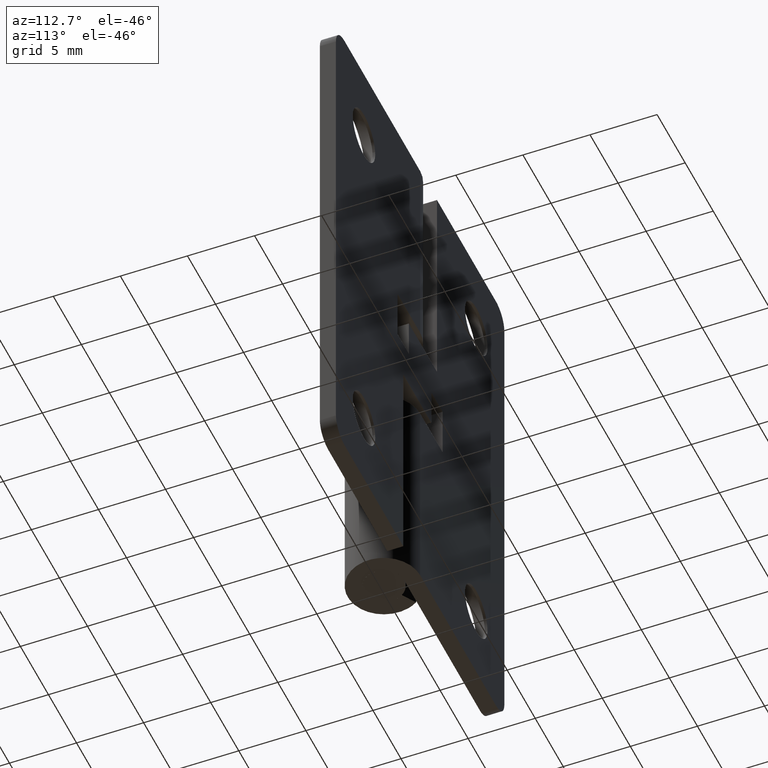
[diagram: clean part render]
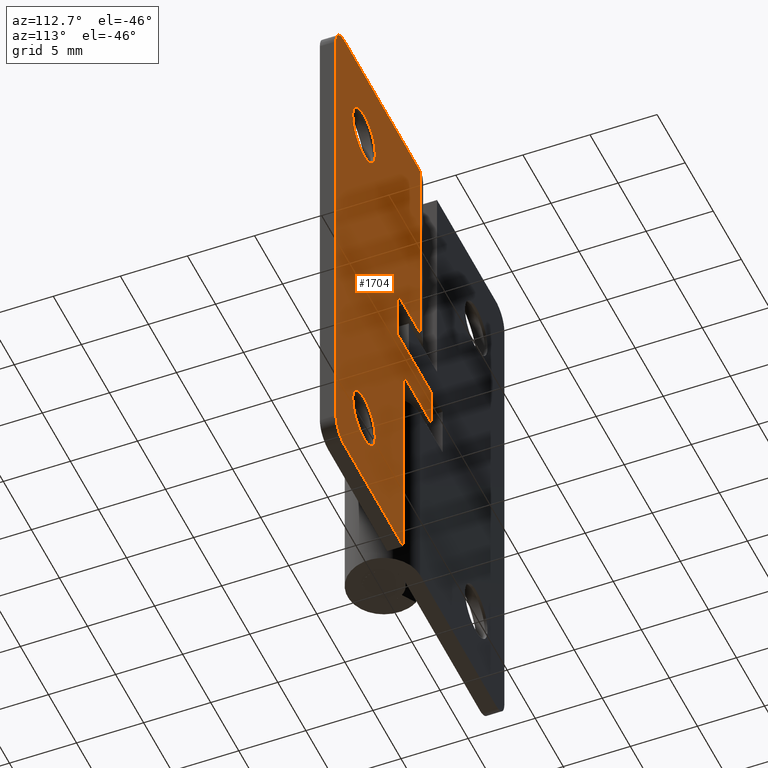
[diagram: same view with one face highlighted and labeled with its STEP entity id]
A machine part, auxiliary view. The second image highlights one B-rep face of the part: STEP entity #1704.
In plain terms, the highlighted face is a freeform B-spline surface patch.
Its self-contained STEP definition (entity closure, byte-faithful):
#476=CARTESIAN_POINT('',(8.013061622654163,2.699997000000000,34.228201412419573));
#477=VERTEX_POINT('',#476);
#483=CARTESIAN_POINT('',(10.0,2.699997000000000,36.000000000000007));
#484=VERTEX_POINT('',#483);
#485=CARTESIAN_POINT('',(8.013061622654163,2.699996999999999,34.228201412419573));
#486=CARTESIAN_POINT('',(8.216554138430254,2.699997000000000,36.0));
#487=CARTESIAN_POINT('',(10.0,2.699997000000000,36.000000000000007));
#495=(BOUNDED_CURVE()B_SPLINE_CURVE(2,(#485,#486,#487),.UNSPECIFIED.,.F.,.U.)B_SPLINE_CURVE_WITH_KNOTS((3,3),(0.269767770005124,0.500000000000000),.UNSPECIFIED.)CURVE()GEOMETRIC_REPRESENTATION_ITEM()RATIONAL_B_SPLINE_CURVE((0.957343708590816,0.730266164328807,1.0))REPRESENTATION_ITEM(''));
#496=EDGE_CURVE('',#477,#484,#495,.T.);
#498=CARTESIAN_POINT('',(11.996269596820250,2.699997000000000,34.122097079453710));
#499=VERTEX_POINT('',#498);
#500=CARTESIAN_POINT('',(10.0,2.699997000000000,36.000000000000007));
#501=CARTESIAN_POINT('',(11.881412133086229,2.699997000000000,36.000000000000014));
#502=CARTESIAN_POINT('',(11.996269596820248,2.699997000000001,34.122097079453710));
#510=(BOUNDED_CURVE()B_SPLINE_CURVE(2,(#500,#501,#502),.UNSPECIFIED.,.F.,.U.)B_SPLINE_CURVE_WITH_KNOTS((3,3),(0.500000000000000,0.739332962175587),.UNSPECIFIED.)CURVE()GEOMETRIC_REPRESENTATION_ITEM()RATIONAL_B_SPLINE_CURVE((1.0,0.719603993360936,0.976072041530934))REPRESENTATION_ITEM(''));
#511=EDGE_CURVE('',#484,#499,#510,.T.);
#610=CARTESIAN_POINT('',(10.0,2.699997000000000,32.0));
#611=VERTEX_POINT('',#610);
#612=CARTESIAN_POINT('',(11.996269596820252,2.699997000000000,34.122097079453724));
#613=CARTESIAN_POINT('',(12.000000000000004,2.699997000000000,34.061105526982260));
#614=CARTESIAN_POINT('',(12.0,2.699997000000000,34.0));
#615=CARTESIAN_POINT('',(12.0,2.699997000000000,31.999999999999996));
#616=CARTESIAN_POINT('',(10.0,2.699997000000000,32.0));
#624=(BOUNDED_CURVE()B_SPLINE_CURVE(2,(#612,#613,#614,#615,#616),.UNSPECIFIED.,.F.,.U.)B_SPLINE_CURVE_WITH_KNOTS((3,2,3),(0.739332962175586,0.750000000000000,1.0),.UNSPECIFIED.)CURVE()GEOMETRIC_REPRESENTATION_ITEM()RATIONAL_B_SPLINE_CURVE((0.976072041530933,0.987502787825611,1.0,0.707106781186548,1.0))REPRESENTATION_ITEM(''));
#625=EDGE_CURVE('',#499,#611,#624,.T.);
#627=CARTESIAN_POINT('',(10.0,2.699997000000000,32.0));
#628=CARTESIAN_POINT('',(8.0,2.699997000000000,31.999999999999996));
#629=CARTESIAN_POINT('',(8.0,2.699997000000000,34.0));
#630=CARTESIAN_POINT('',(8.0,2.699997000000000,34.114474553808158));
#631=CARTESIAN_POINT('',(8.013061622654163,2.699997000000000,34.228201412419565));
#639=(BOUNDED_CURVE()B_SPLINE_CURVE(2,(#627,#628,#629,#630,#631),.UNSPECIFIED.,.F.,.U.)B_SPLINE_CURVE_WITH_KNOTS((3,2,3),(0.0,0.250000000000000,0.269767770005124),.UNSPECIFIED.)CURVE()GEOMETRIC_REPRESENTATION_ITEM()RATIONAL_B_SPLINE_CURVE((1.0,0.707106781186548,1.0,0.976840616857741,0.957343708590816))REPRESENTATION_ITEM(''));
#640=EDGE_CURVE('',#611,#477,#639,.T.);
#808=CARTESIAN_POINT('',(8.013061622654163,2.699997000000000,6.228201412419471));
#809=VERTEX_POINT('',#808);
#815=CARTESIAN_POINT('',(10.0,2.699997000000000,7.999999999999900));
#816=VERTEX_POINT('',#815);
#817=CARTESIAN_POINT('',(8.013061622654163,2.699997000000000,6.228201412419471));
#818=CARTESIAN_POINT('',(8.216554138430256,2.699996999999999,7.999999999999899));
#819=CARTESIAN_POINT('',(10.0,2.699997000000000,7.999999999999900));
#827=(BOUNDED_CURVE()B_SPLINE_CURVE(2,(#817,#818,#819),.UNSPECIFIED.,.F.,.U.)B_SPLINE_CURVE_WITH_KNOTS((3,3),(0.269767770005124,0.500000000000000),.UNSPECIFIED.)CURVE()GEOMETRIC_REPRESENTATION_ITEM()RATIONAL_B_SPLINE_CURVE((0.957343708590815,0.730266164328807,1.0))REPRESENTATION_ITEM(''));
#828=EDGE_CURVE('',#809,#816,#827,.T.);
#830=CARTESIAN_POINT('',(11.996269596820250,2.699997000000000,6.122097079453615));
#831=VERTEX_POINT('',#830);
#832=CARTESIAN_POINT('',(10.0,2.699997000000000,7.999999999999900));
#833=CARTESIAN_POINT('',(11.881412133086229,2.699997000000000,7.999999999999900));
#834=CARTESIAN_POINT('',(11.996269596820248,2.699997000000001,6.122097079453616));
#842=(BOUNDED_CURVE()B_SPLINE_CURVE(2,(#832,#833,#834),.UNSPECIFIED.,.F.,.U.)B_SPLINE_CURVE_WITH_KNOTS((3,3),(0.500000000000000,0.739332962175587),.UNSPECIFIED.)CURVE()GEOMETRIC_REPRESENTATION_ITEM()RATIONAL_B_SPLINE_CURVE((1.0,0.719603993360936,0.976072041530934))REPRESENTATION_ITEM(''));
#843=EDGE_CURVE('',#816,#831,#842,.T.);
#942=CARTESIAN_POINT('',(10.0,2.699997000000000,3.999999999999901));
#943=VERTEX_POINT('',#942);
#944=CARTESIAN_POINT('',(11.996269596820250,2.699997000000000,6.122097079453615));
#945=CARTESIAN_POINT('',(12.000000000000002,2.699997000000001,6.061105526982156));
#946=CARTESIAN_POINT('',(12.0,2.699997000000000,5.999999999999901));
#947=CARTESIAN_POINT('',(12.0,2.699997000000000,3.999999999999901));
#948=CARTESIAN_POINT('',(10.0,2.699997000000000,3.999999999999901));
#956=(BOUNDED_CURVE()B_SPLINE_CURVE(2,(#944,#945,#946,#947,#948),.UNSPECIFIED.,.F.,.U.)B_SPLINE_CURVE_WITH_KNOTS((3,2,3),(0.739332962175586,0.750000000000000,1.0),.UNSPECIFIED.)CURVE()GEOMETRIC_REPRESENTATION_ITEM()RATIONAL_B_SPLINE_CURVE((0.976072041530933,0.987502787825611,1.0,0.707106781186548,1.0))REPRESENTATION_ITEM(''));
#957=EDGE_CURVE('',#831,#943,#956,.T.);
#959=CARTESIAN_POINT('',(10.0,2.699997000000000,3.999999999999901));
#960=CARTESIAN_POINT('',(8.0,2.699997000000000,3.999999999999901));
#961=CARTESIAN_POINT('',(8.0,2.699997000000000,5.999999999999901));
#962=CARTESIAN_POINT('',(8.0,2.699997000000001,6.114474553808059));
#963=CARTESIAN_POINT('',(8.013061622654163,2.699997000000001,6.228201412419471));
#971=(BOUNDED_CURVE()B_SPLINE_CURVE(2,(#959,#960,#961,#962,#963),.UNSPECIFIED.,.F.,.U.)B_SPLINE_CURVE_WITH_KNOTS((3,2,3),(0.0,0.250000000000000,0.269767770005124),.UNSPECIFIED.)CURVE()GEOMETRIC_REPRESENTATION_ITEM()RATIONAL_B_SPLINE_CURVE((1.0,0.707106781186548,1.0,0.976840616857741,0.957343708590815))REPRESENTATION_ITEM(''));
#972=EDGE_CURVE('',#943,#809,#971,.T.);
#1136=CARTESIAN_POINT('',(15.0,2.699997000000000,38.500000000000000));
#1137=VERTEX_POINT('',#1136);
#1143=CARTESIAN_POINT('',(13.500000000000000,2.699997000000000,40.0));
#1144=VERTEX_POINT('',#1143);
#1145=CARTESIAN_POINT('',(13.500000000000000,2.699997000000000,40.0));
#1146=CARTESIAN_POINT('',(14.999999999999995,2.699997000000000,39.999999999999993));
#1147=CARTESIAN_POINT('',(15.0,2.699997000000000,38.500000000000000));
#1155=(BOUNDED_CURVE()B_SPLINE_CURVE(2,(#1145,#1146,#1147),.UNSPECIFIED.,.F.,.U.)CURVE()GEOMETRIC_REPRESENTATION_ITEM()QUASI_UNIFORM_CURVE()RATIONAL_B_SPLINE_CURVE((1.0,0.707106781186548,1.0))REPRESENTATION_ITEM(''));
#1156=EDGE_CURVE('',#1144,#1137,#1155,.T.);
#1197=CARTESIAN_POINT('',(13.500000000000000,2.699997000000000,0.0));
#1198=VERTEX_POINT('',#1197);
#1204=CARTESIAN_POINT('',(15.0,2.699997000000000,1.499999999999946));
#1205=VERTEX_POINT('',#1204);
#1206=CARTESIAN_POINT('',(15.0,2.699997000000000,1.499999999999946));
#1207=CARTESIAN_POINT('',(14.999999999999995,2.699997000000000,-5.399327E-014));
#1208=CARTESIAN_POINT('',(13.500000000000000,2.699997000000000,0.0));
#1216=(BOUNDED_CURVE()B_SPLINE_CURVE(2,(#1206,#1207,#1208),.UNSPECIFIED.,.F.,.U.)CURVE()GEOMETRIC_REPRESENTATION_ITEM()QUASI_UNIFORM_CURVE()RATIONAL_B_SPLINE_CURVE((1.0,0.707106781186548,1.0))REPRESENTATION_ITEM(''));
#1217=EDGE_CURVE('',#1205,#1198,#1216,.T.);
#1232=CARTESIAN_POINT('',(3.0,2.700001000000000,17.0));
#1233=VERTEX_POINT('',#1232);
#1234=CARTESIAN_POINT('',(-2.0,2.700001000000000,17.0));
#1235=VERTEX_POINT('',#1234);
#1236=CARTESIAN_POINT('',(3.0,2.700001000000000,17.0));
#1237=CARTESIAN_POINT('',(-2.0,2.700001000000000,17.0));
#1238=QUASI_UNIFORM_CURVE('',1,(#1236,#1237),.UNSPECIFIED.,.F.,.U.);
#1239=EDGE_CURVE('',#1233,#1235,#1238,.T.);
#1268=CARTESIAN_POINT('',(-2.0,2.700001000000000,20.0));
#1269=VERTEX_POINT('',#1268);
#1270=CARTESIAN_POINT('',(-2.0,2.700001000000000,17.0));
#1271=CARTESIAN_POINT('',(-2.0,2.700001000000000,20.0));
#1272=QUASI_UNIFORM_CURVE('',1,(#1270,#1271),.UNSPECIFIED.,.F.,.U.);
#1273=EDGE_CURVE('',#1235,#1269,#1272,.T.);
#1304=CARTESIAN_POINT('',(3.0,2.699997000000000,0.0));
#1305=VERTEX_POINT('',#1304);
#1306=CARTESIAN_POINT('',(3.0,2.700001000000000,17.0));
#1307=CARTESIAN_POINT('',(3.0,2.699997000000000,0.0));
#1308=QUASI_UNIFORM_CURVE('',1,(#1306,#1307),.UNSPECIFIED.,.F.,.U.);
#1309=EDGE_CURVE('',#1233,#1305,#1308,.T.);
#1354=CARTESIAN_POINT('',(-0.004024921244143,2.699997000000000,24.0));
#1355=VERTEX_POINT('',#1354);
#1375=CARTESIAN_POINT('',(4.0,2.699997000000000,24.0));
#1376=VERTEX_POINT('',#1375);
#1377=CARTESIAN_POINT('',(-0.004024921244143,2.699997000000000,24.0));
#1378=CARTESIAN_POINT('',(4.0,2.699997000000000,24.0));
#1379=QUASI_UNIFORM_CURVE('',1,(#1377,#1378),.UNSPECIFIED.,.F.,.U.);
#1380=EDGE_CURVE('',#1355,#1376,#1379,.T.);
#1404=CARTESIAN_POINT('',(4.0,2.699997000000000,20.0));
#1405=VERTEX_POINT('',#1404);
#1411=CARTESIAN_POINT('',(4.0,2.699997000000000,20.0));
#1412=CARTESIAN_POINT('',(-2.0,2.700001000000000,20.0));
#1413=QUASI_UNIFORM_CURVE('',1,(#1411,#1412),.UNSPECIFIED.,.F.,.U.);
#1414=EDGE_CURVE('',#1405,#1269,#1413,.T.);
#1431=CARTESIAN_POINT('',(4.0,2.699997000000000,24.0));
#1432=CARTESIAN_POINT('',(4.0,2.699997000000000,20.0));
#1433=QUASI_UNIFORM_CURVE('',1,(#1431,#1432),.UNSPECIFIED.,.F.,.U.);
#1434=EDGE_CURVE('',#1376,#1405,#1433,.T.);
#1450=CARTESIAN_POINT('',(13.500000000000000,2.699997000000000,0.0));
#1451=CARTESIAN_POINT('',(3.0,2.699997000000000,0.0));
#1452=QUASI_UNIFORM_CURVE('',1,(#1450,#1451),.UNSPECIFIED.,.F.,.U.);
#1453=EDGE_CURVE('',#1198,#1305,#1452,.T.);
#1478=CARTESIAN_POINT('',(-0.004024921244143,2.699997000000000,40.0));
#1479=VERTEX_POINT('',#1478);
#1480=CARTESIAN_POINT('',(13.500000000000000,2.699997000000000,40.0));
#1481=CARTESIAN_POINT('',(-0.004024921244143,2.699997000000000,40.0));
#1482=QUASI_UNIFORM_CURVE('',1,(#1480,#1481),.UNSPECIFIED.,.F.,.U.);
#1483=EDGE_CURVE('',#1144,#1479,#1482,.T.);
#1610=CARTESIAN_POINT('',(-0.004024921244143,2.699997000000000,40.0));
#1611=CARTESIAN_POINT('',(-0.004024921244143,2.699997000000000,24.0));
#1612=QUASI_UNIFORM_CURVE('',1,(#1610,#1611),.UNSPECIFIED.,.F.,.U.);
#1613=EDGE_CURVE('',#1479,#1355,#1612,.T.);
#1632=CARTESIAN_POINT('',(15.0,2.699997000000000,38.500000000000000));
#1633=CARTESIAN_POINT('',(15.0,2.699997000000000,1.499999999999946));
#1634=QUASI_UNIFORM_CURVE('',1,(#1632,#1633),.UNSPECIFIED.,.F.,.U.);
#1635=EDGE_CURVE('',#1137,#1205,#1634,.T.);
#1673=CARTESIAN_POINT('',(-2.849149967050703,2.699997000000000,41.997999922472239));
#1674=CARTESIAN_POINT('',(-2.849149967050703,2.699997000000000,-1.998000995355844));
#1675=CARTESIAN_POINT('',(15.849150423026240,2.699997000000000,41.997999922472239));
#1676=CARTESIAN_POINT('',(15.849150423026240,2.699997000000000,-1.998000995355844));
#1677=B_SPLINE_SURFACE_WITH_KNOTS('',1,1,((#1673,#1675),(#1674,#1676)),.UNSPECIFIED.,.F.,.F.,.U.,(2,2),(2,2),(0.0,43.996000917828077),(0.0,18.698300390076941),.UNSPECIFIED.);
#1678=ORIENTED_EDGE('',*,*,#1635,.T.);
#1679=ORIENTED_EDGE('',*,*,#1217,.T.);
#1680=ORIENTED_EDGE('',*,*,#1453,.T.);
#1681=ORIENTED_EDGE('',*,*,#1309,.F.);
#1682=ORIENTED_EDGE('',*,*,#1239,.T.);
#1683=ORIENTED_EDGE('',*,*,#1273,.T.);
#1684=ORIENTED_EDGE('',*,*,#1414,.F.);
#1685=ORIENTED_EDGE('',*,*,#1434,.F.);
#1686=ORIENTED_EDGE('',*,*,#1380,.F.);
#1687=ORIENTED_EDGE('',*,*,#1613,.F.);
#1688=ORIENTED_EDGE('',*,*,#1483,.F.);
#1689=ORIENTED_EDGE('',*,*,#1156,.T.);
#1690=EDGE_LOOP('',(#1678,#1679,#1680,#1681,#1682,#1683,#1684,#1685,#1686,#1687,#1688,#1689));
#1691=FACE_OUTER_BOUND('',#1690,.T.);
#1692=ORIENTED_EDGE('',*,*,#843,.F.);
#1693=ORIENTED_EDGE('',*,*,#828,.F.);
#1694=ORIENTED_EDGE('',*,*,#972,.F.);
#1695=ORIENTED_EDGE('',*,*,#957,.F.);
#1696=EDGE_LOOP('',(#1692,#1693,#1694,#1695));
#1697=FACE_BOUND('',#1696,.T.);
#1698=ORIENTED_EDGE('',*,*,#511,.F.);
#1699=ORIENTED_EDGE('',*,*,#496,.F.);
#1700=ORIENTED_EDGE('',*,*,#640,.F.);
#1701=ORIENTED_EDGE('',*,*,#625,.F.);
#1702=EDGE_LOOP('',(#1698,#1699,#1700,#1701));
#1703=FACE_BOUND('',#1702,.T.);
#1704=ADVANCED_FACE('',(#1691,#1697,#1703),#1677,.F.);